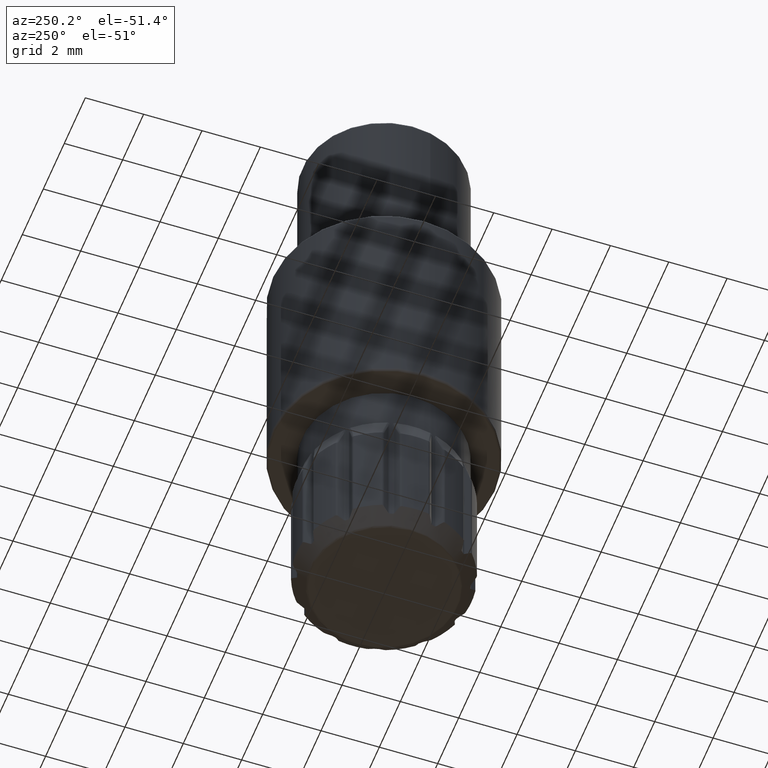
[diagram: clean part render]
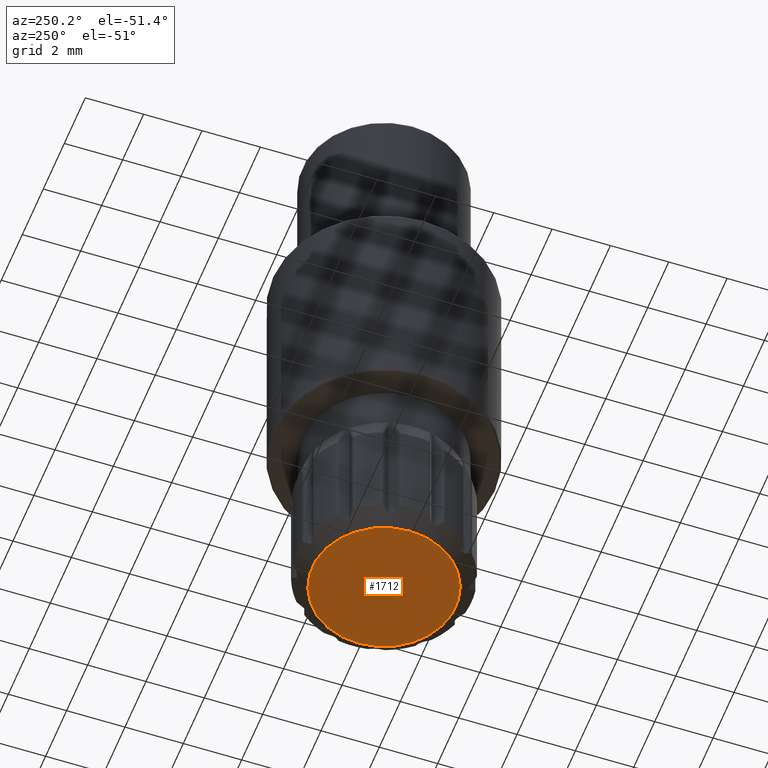
[diagram: same view with one face highlighted and labeled with its STEP entity id]
A machine part, auxiliary view. The second image highlights one B-rep face of the part: STEP entity #1712.
In plain terms, the highlighted planar face has unit normal (0, 0, 1).
Its self-contained STEP definition (entity closure, byte-faithful):
#441 = EDGE_CURVE ( 'NONE', #4545, #4545, #3117, .T. ) ;
#616 = CARTESIAN_POINT ( 'NONE',  ( 0.000000000000000000, 0.000000000000000000, 0.000000000000000000 ) ) ;
#1202 = DIRECTION ( 'NONE',  ( 1.000000000000000000, 0.000000000000000000, 0.000000000000000000 ) ) ;
#1712 = ADVANCED_FACE ( 'NONE', ( #7431 ), #5620, .F. ) ;
#2341 = ORIENTED_EDGE ( 'NONE', *, *, #441, .T. ) ;
#3117 = CIRCLE ( 'NONE', #5778, 2.458578643762690419 ) ;
#3277 = DIRECTION ( 'NONE',  ( 0.000000000000000000, 0.000000000000000000, 1.000000000000000000 ) ) ;
#3997 = EDGE_LOOP ( 'NONE', ( #2341 ) ) ;
#4475 = CARTESIAN_POINT ( 'NONE',  ( 0.000000000000000000, 0.000000000000000000, 0.000000000000000000 ) ) ;
#4488 = CARTESIAN_POINT ( 'NONE',  ( 2.458578643762690419, 0.000000000000000000, 0.000000000000000000 ) ) ;
#4545 = VERTEX_POINT ( 'NONE', #4488 ) ;
#5620 = PLANE ( 'NONE',  #6916 ) ;
#5778 = AXIS2_PLACEMENT_3D ( 'NONE', #616, #6909, #1202 ) ;
#6803 = DIRECTION ( 'NONE',  ( 1.000000000000000000, 0.000000000000000000, -0.000000000000000000 ) ) ;
#6909 = DIRECTION ( 'NONE',  ( -0.000000000000000000, -0.000000000000000000, -1.000000000000000000 ) ) ;
#6916 = AXIS2_PLACEMENT_3D ( 'NONE', #4475, #3277, #6803 ) ;
#7431 = FACE_OUTER_BOUND ( 'NONE', #3997, .T. ) ;